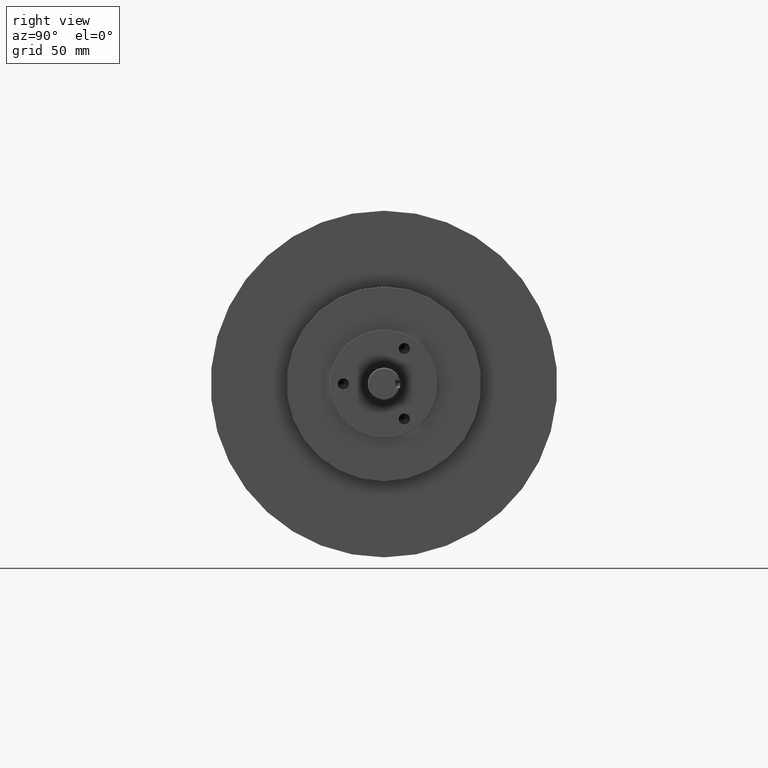
[diagram: clean part render]
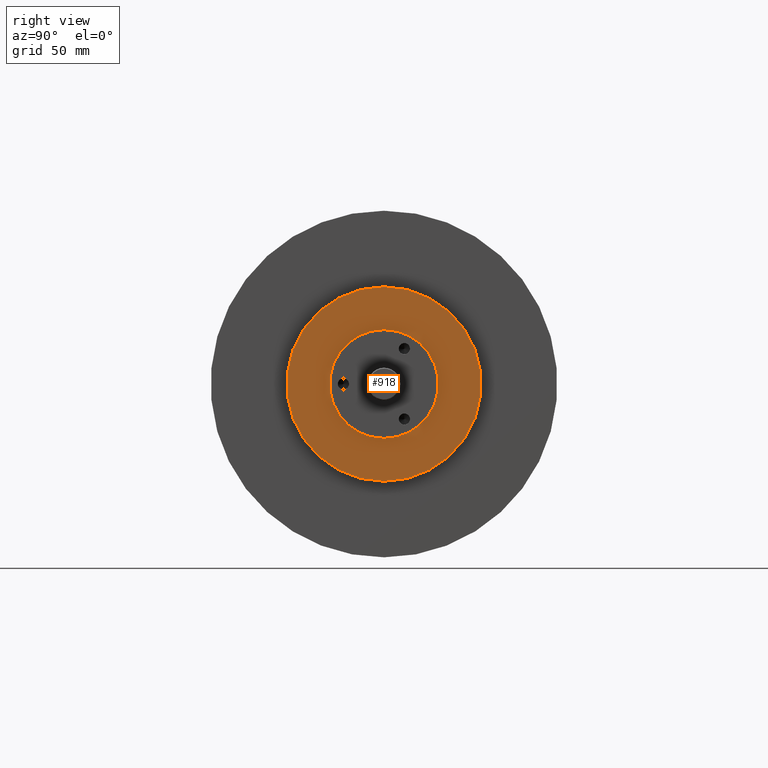
[diagram: same view with one face highlighted and labeled with its STEP entity id]
A machine part, right view. The second image highlights one B-rep face of the part: STEP entity #918.
In plain terms, the highlighted planar face has unit normal (1, 0, 0).
Its self-contained STEP definition (entity closure, byte-faithful):
#38 = EDGE_CURVE ( 'NONE', #533, #534, #1376, .T. ) ;
#40 = EDGE_CURVE ( 'NONE', #529, #530, #1378, .T. ) ;
#111 = EDGE_CURVE ( 'NONE', #534, #533, #1413, .T. ) ;
#346 = EDGE_LOOP ( 'NONE', ( #1048, #1049 ) ) ;
#355 = EDGE_LOOP ( 'NONE', ( #1050, #1051 ) ) ;
#529 = VERTEX_POINT ( 'NONE', #1963 ) ;
#530 = VERTEX_POINT ( 'NONE', #1964 ) ;
#533 = VERTEX_POINT ( 'NONE', #1967 ) ;
#534 = VERTEX_POINT ( 'NONE', #1968 ) ;
#694 = CARTESIAN_POINT ( 'NONE',  ( 10.67000000000000200, 0.0000000000000000000, 0.0000000000000000000 ) ) ;
#710 = DIRECTION ( 'NONE',  ( -1.000000000000000000, -0.0000000000000000000, -0.0000000000000000000 ) ) ;
#711 = DIRECTION ( 'NONE',  ( 0.0000000000000000000, 0.0000000000000000000, -1.000000000000000000 ) ) ;
#715 = CARTESIAN_POINT ( 'NONE',  ( 10.67000000000000200, 0.0000000000000000000, 0.0000000000000000000 ) ) ;
#716 = DIRECTION ( 'NONE',  ( 1.000000000000000000, 0.0000000000000000000, 0.0000000000000000000 ) ) ;
#717 = DIRECTION ( 'NONE',  ( 0.0000000000000000000, 0.0000000000000000000, -1.000000000000000000 ) ) ;
#787 = CARTESIAN_POINT ( 'NONE',  ( 10.67000000000000200, 0.0000000000000000000, 0.0000000000000000000 ) ) ;
#791 = DIRECTION ( 'NONE',  ( -1.000000000000000000, -0.0000000000000000000, -0.0000000000000000000 ) ) ;
#794 = DIRECTION ( 'NONE',  ( 0.0000000000000000000, 0.0000000000000000000, -1.000000000000000000 ) ) ;
#820 = AXIS2_PLACEMENT_3D ( 'NONE', #694, #710, #711 ) ;
#869 = EDGE_CURVE ( 'NONE', #530, #529, #2447, .T. ) ;
#918 = ADVANCED_FACE ( 'NONE', ( #2544, #2542 ), #2315, .T. ) ;
#1048 = ORIENTED_EDGE ( 'NONE', *, *, #111, .T. ) ;
#1049 = ORIENTED_EDGE ( 'NONE', *, *, #38, .T. ) ;
#1050 = ORIENTED_EDGE ( 'NONE', *, *, #869, .T. ) ;
#1051 = ORIENTED_EDGE ( 'NONE', *, *, #40, .T. ) ;
#1376 = CIRCLE ( 'NONE', #820, 1.255000000000000100 ) ;
#1378 = CIRCLE ( 'NONE', #2694, 2.245000000000000100 ) ;
#1413 = CIRCLE ( 'NONE', #1594, 1.255000000000000100 ) ;
#1594 = AXIS2_PLACEMENT_3D ( 'NONE', #787, #791, #794 ) ;
#1684 = AXIS2_PLACEMENT_3D ( 'NONE', #2174, #2176, #2177 ) ;
#1736 = AXIS2_PLACEMENT_3D ( 'NONE', #2308, #2320, #2321 ) ;
#1963 = CARTESIAN_POINT ( 'NONE',  ( 10.67000000000000200, 2.752393681083676300E-016, 2.245000000000000100 ) ) ;
#1964 = CARTESIAN_POINT ( 'NONE',  ( 10.67000000000000200, 0.0000000000000000000, -2.245000000000000100 ) ) ;
#1967 = CARTESIAN_POINT ( 'NONE',  ( 10.67000000000000200, 1.536931732929928700E-016, 1.255000000000000100 ) ) ;
#1968 = CARTESIAN_POINT ( 'NONE',  ( 10.67000000000000200, 0.0000000000000000000, -1.255000000000000100 ) ) ;
#2174 = CARTESIAN_POINT ( 'NONE',  ( 10.67000000000000200, 0.0000000000000000000, 0.0000000000000000000 ) ) ;
#2176 = DIRECTION ( 'NONE',  ( 1.000000000000000000, 0.0000000000000000000, 0.0000000000000000000 ) ) ;
#2177 = DIRECTION ( 'NONE',  ( 0.0000000000000000000, 0.0000000000000000000, -1.000000000000000000 ) ) ;
#2308 = CARTESIAN_POINT ( 'NONE',  ( 10.67000000000000200, 0.0000000000000000000, 0.0000000000000000000 ) ) ;
#2315 = PLANE ( 'NONE',  #1736 ) ;
#2320 = DIRECTION ( 'NONE',  ( 1.000000000000000000, 0.0000000000000000000, 0.0000000000000000000 ) ) ;
#2321 = DIRECTION ( 'NONE',  ( 0.0000000000000000000, 0.0000000000000000000, -1.000000000000000000 ) ) ;
#2447 = CIRCLE ( 'NONE', #1684, 2.245000000000000100 ) ;
#2542 = FACE_OUTER_BOUND ( 'NONE', #355, .T. ) ;
#2544 = FACE_BOUND ( 'NONE', #346, .T. ) ;
#2694 = AXIS2_PLACEMENT_3D ( 'NONE', #715, #716, #717 ) ;